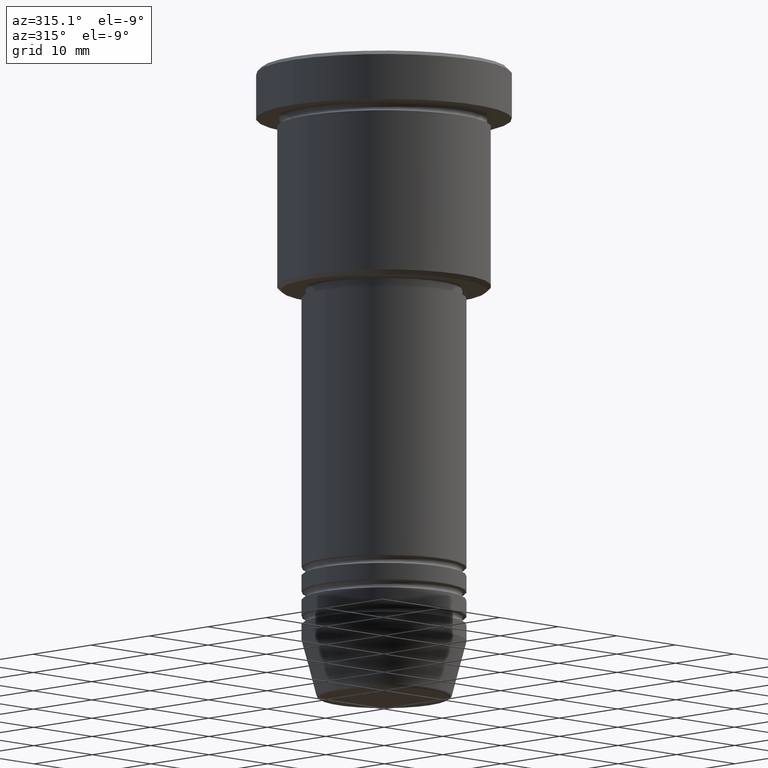
[diagram: clean part render]
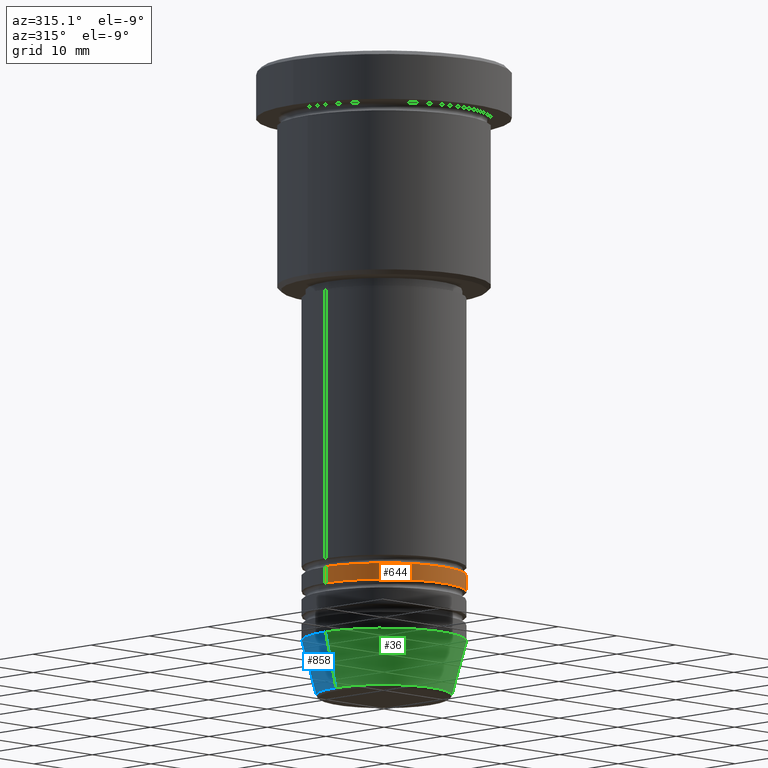
[diagram: same view with three faces highlighted in distinct colors, each labeled with its STEP entity id]
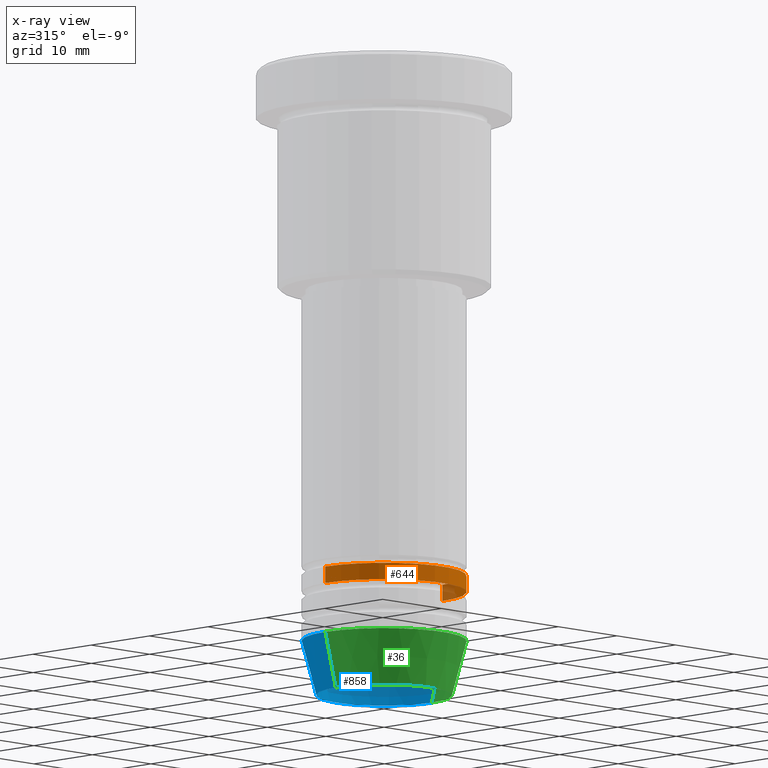
[diagram: x-ray of the same camera — body ghosted, the three highlighted faces saturated]
A machine part, auxiliary view with three faces highlighted in distinct colors.
The next image is the same camera in x-ray (body ghosted, the three faces saturated) — at least one of them is partly hidden behind the body in this view.
Their STEP definitions:

[orange] entity #644 — the highlighted cylindrical surface (partial cylindrical patch) has radius 10 mm, axis along (-0, -0, 1).
#3 = AXIS2_PLACEMENT_3D ( 'NONE', #236, #408, #887 ) ;
#5 = ORIENTED_EDGE ( 'NONE', *, *, #445, .F. ) ;
#52 = CARTESIAN_POINT ( 'NONE',  ( 0.000000000000000000, 0.000000000000000000, 0.000000000000000000 ) ) ;
#153 = ORIENTED_EDGE ( 'NONE', *, *, #864, .T. ) ;
#195 = CARTESIAN_POINT ( 'NONE',  ( 0.000000000000000000, 0.000000000000000000, -61.99999999999998579 ) ) ;
#204 = VECTOR ( 'NONE', #1028, 1000.000000000000000 ) ;
#236 = CARTESIAN_POINT ( 'NONE',  ( 0.000000000000000000, 0.000000000000000000, -63.99999999999998579 ) ) ;
#296 = CARTESIAN_POINT ( 'NONE',  ( -10.00000000000000000, 1.224646799147353256E-15, 0.000000000000000000 ) ) ;
#315 = AXIS2_PLACEMENT_3D ( 'NONE', #195, #761, #1038 ) ;
#367 = CIRCLE ( 'NONE', #315, 10.00000000000000000 ) ;
#369 = LINE ( 'NONE', #296, #204 ) ;
#393 = DIRECTION ( 'NONE',  ( -0.000000000000000000, -0.000000000000000000, 1.000000000000000000 ) ) ;
#408 = DIRECTION ( 'NONE',  ( -0.000000000000000000, -0.000000000000000000, 1.000000000000000000 ) ) ;
#413 = DIRECTION ( 'NONE',  ( -0.000000000000000000, -0.000000000000000000, 1.000000000000000000 ) ) ;
#445 = EDGE_CURVE ( 'NONE', #740, #747, #369, .T. ) ;
#457 = CIRCLE ( 'NONE', #3, 10.00000000000000000 ) ;
#460 = CARTESIAN_POINT ( 'NONE',  ( -10.00000000000000000, 1.224646799147353256E-15, -61.99999999999998579 ) ) ;
#463 = EDGE_LOOP ( 'NONE', ( #5, #831, #153, #464 ) ) ;
#464 = ORIENTED_EDGE ( 'NONE', *, *, #633, .F. ) ;
#494 = CYLINDRICAL_SURFACE ( 'NONE', #1029, 10.00000000000000000 ) ;
#509 = CARTESIAN_POINT ( 'NONE',  ( 10.00000000000000000, 0.000000000000000000, 0.000000000000000000 ) ) ;
#591 = CARTESIAN_POINT ( 'NONE',  ( 10.00000000000000000, 0.000000000000000000, -61.99999999999998579 ) ) ;
#633 = EDGE_CURVE ( 'NONE', #747, #923, #367, .T. ) ;
#644 = ADVANCED_FACE ( 'NONE', ( #863 ), #494, .T. ) ;
#688 = EDGE_CURVE ( 'NONE', #740, #733, #457, .T. ) ;
#733 = VERTEX_POINT ( 'NONE', #879 ) ;
#740 = VERTEX_POINT ( 'NONE', #951 ) ;
#747 = VERTEX_POINT ( 'NONE', #460 ) ;
#761 = DIRECTION ( 'NONE',  ( -0.000000000000000000, -0.000000000000000000, 1.000000000000000000 ) ) ;
#831 = ORIENTED_EDGE ( 'NONE', *, *, #688, .T. ) ;
#863 = FACE_OUTER_BOUND ( 'NONE', #463, .T. ) ;
#864 = EDGE_CURVE ( 'NONE', #733, #923, #981, .T. ) ;
#879 = CARTESIAN_POINT ( 'NONE',  ( 10.00000000000000000, 0.000000000000000000, -63.99999999999998579 ) ) ;
#887 = DIRECTION ( 'NONE',  ( 1.000000000000000000, 0.000000000000000000, 0.000000000000000000 ) ) ;
#923 = VERTEX_POINT ( 'NONE', #591 ) ;
#951 = CARTESIAN_POINT ( 'NONE',  ( -10.00000000000000000, 1.224646799147353256E-15, -63.99999999999998579 ) ) ;
#981 = LINE ( 'NONE', #509, #1124 ) ;
#1028 = DIRECTION ( 'NONE',  ( -0.000000000000000000, -0.000000000000000000, 1.000000000000000000 ) ) ;
#1029 = AXIS2_PLACEMENT_3D ( 'NONE', #52, #393, #1088 ) ;
#1038 = DIRECTION ( 'NONE',  ( 1.000000000000000000, 0.000000000000000000, 0.000000000000000000 ) ) ;
#1088 = DIRECTION ( 'NONE',  ( 1.000000000000000000, 0.000000000000000000, 0.000000000000000000 ) ) ;
#1124 = VECTOR ( 'NONE', #413, 1000.000000000000000 ) ;

[blue] entity #858 — the highlighted conical surface has half-angle 15 deg.
#138 = CARTESIAN_POINT ( 'NONE',  ( 8.223655072137187716, 0.000000000000000000, -76.62940952255127058 ) ) ;
#220 = CIRCLE ( 'NONE', #261, 10.00000000000000000 ) ;
#239 = EDGE_CURVE ( 'NONE', #960, #996, #1131, .T. ) ;
#261 = AXIS2_PLACEMENT_3D ( 'NONE', #854, #765, #956 ) ;
#273 = EDGE_CURVE ( 'NONE', #996, #575, #220, .T. ) ;
#386 = VECTOR ( 'NONE', #763, 1000.000000000000000 ) ;
#405 = AXIS2_PLACEMENT_3D ( 'NONE', #952, #859, #972 ) ;
#424 = AXIS2_PLACEMENT_3D ( 'NONE', #1171, #545, #784 ) ;
#432 = EDGE_LOOP ( 'NONE', ( #1089, #908, #589, #897 ) ) ;
#435 = CARTESIAN_POINT ( 'NONE',  ( -8.223655072137187716, 1.115877042642911856E-15, -76.62940952255127058 ) ) ;
#466 = DIRECTION ( 'NONE',  ( 0.2588190451025213501, 0.000000000000000000, 0.9659258262890680902 ) ) ;
#545 = DIRECTION ( 'NONE',  ( -0.000000000000000000, -0.000000000000000000, 1.000000000000000000 ) ) ;
#548 = CONICAL_SURFACE ( 'NONE', #424, 10.00000000000000000, 0.2617993877991500740 ) ;
#575 = VERTEX_POINT ( 'NONE', #1182 ) ;
#589 = ORIENTED_EDGE ( 'NONE', *, *, #273, .F. ) ;
#637 = VECTOR ( 'NONE', #466, 1000.000000000000000 ) ;
#751 = CIRCLE ( 'NONE', #405, 8.223655072137187716 ) ;
#762 = CARTESIAN_POINT ( 'NONE',  ( 10.00000000000000000, 0.000000000000000000, -70.00000000000000000 ) ) ;
#763 = DIRECTION ( 'NONE',  ( -0.2588190451025213501, 3.169619151431772337E-17, 0.9659258262890680902 ) ) ;
#765 = DIRECTION ( 'NONE',  ( -0.000000000000000000, -0.000000000000000000, 1.000000000000000000 ) ) ;
#784 = DIRECTION ( 'NONE',  ( 1.000000000000000000, 0.000000000000000000, 0.000000000000000000 ) ) ;
#841 = FACE_OUTER_BOUND ( 'NONE', #432, .T. ) ;
#854 = CARTESIAN_POINT ( 'NONE',  ( 0.000000000000000000, 0.000000000000000000, -70.00000000000000000 ) ) ;
#858 = ADVANCED_FACE ( 'NONE', ( #841 ), #548, .T. ) ;
#859 = DIRECTION ( 'NONE',  ( -0.000000000000000000, -0.000000000000000000, 1.000000000000000000 ) ) ;
#897 = ORIENTED_EDGE ( 'NONE', *, *, #239, .F. ) ;
#908 = ORIENTED_EDGE ( 'NONE', *, *, #919, .T. ) ;
#919 = EDGE_CURVE ( 'NONE', #1148, #575, #1045, .T. ) ;
#927 = EDGE_CURVE ( 'NONE', #960, #1148, #751, .T. ) ;
#952 = CARTESIAN_POINT ( 'NONE',  ( 0.000000000000000000, 0.000000000000000000, -76.62940952255127058 ) ) ;
#956 = DIRECTION ( 'NONE',  ( 1.000000000000000000, 0.000000000000000000, 0.000000000000000000 ) ) ;
#960 = VERTEX_POINT ( 'NONE', #138 ) ;
#972 = DIRECTION ( 'NONE',  ( 1.000000000000000000, 0.000000000000000000, 0.000000000000000000 ) ) ;
#996 = VERTEX_POINT ( 'NONE', #1003 ) ;
#1003 = CARTESIAN_POINT ( 'NONE',  ( 10.00000000000000000, 0.000000000000000000, -70.00000000000000000 ) ) ;
#1045 = LINE ( 'NONE', #1140, #386 ) ;
#1089 = ORIENTED_EDGE ( 'NONE', *, *, #927, .T. ) ;
#1131 = LINE ( 'NONE', #762, #637 ) ;
#1140 = CARTESIAN_POINT ( 'NONE',  ( -10.00000000000000000, 1.224646799147353256E-15, -70.00000000000000000 ) ) ;
#1148 = VERTEX_POINT ( 'NONE', #435 ) ;
#1171 = CARTESIAN_POINT ( 'NONE',  ( 0.000000000000000000, 0.000000000000000000, -70.00000000000000000 ) ) ;
#1182 = CARTESIAN_POINT ( 'NONE',  ( -10.00000000000000000, 1.224646799147353256E-15, -70.00000000000000000 ) ) ;

[green] entity #36 — the highlighted conical surface has half-angle 15 deg.
#17 = AXIS2_PLACEMENT_3D ( 'NONE', #155, #535, #704 ) ;
#36 = ADVANCED_FACE ( 'NONE', ( #664 ), #497, .T. ) ;
#48 = AXIS2_PLACEMENT_3D ( 'NONE', #1033, #471, #966 ) ;
#138 = CARTESIAN_POINT ( 'NONE',  ( 8.223655072137187716, 0.000000000000000000, -76.62940952255127058 ) ) ;
#155 = CARTESIAN_POINT ( 'NONE',  ( 0.000000000000000000, 0.000000000000000000, -70.00000000000000000 ) ) ;
#178 = ORIENTED_EDGE ( 'NONE', *, *, #919, .F. ) ;
#237 = DIRECTION ( 'NONE',  ( 1.000000000000000000, 0.000000000000000000, 0.000000000000000000 ) ) ;
#239 = EDGE_CURVE ( 'NONE', #960, #996, #1131, .T. ) ;
#313 = EDGE_CURVE ( 'NONE', #1148, #960, #383, .T. ) ;
#325 = EDGE_CURVE ( 'NONE', #575, #996, #348, .T. ) ;
#348 = CIRCLE ( 'NONE', #17, 10.00000000000000000 ) ;
#383 = CIRCLE ( 'NONE', #522, 8.223655072137187716 ) ;
#386 = VECTOR ( 'NONE', #763, 1000.000000000000000 ) ;
#409 = DIRECTION ( 'NONE',  ( -0.000000000000000000, -0.000000000000000000, 1.000000000000000000 ) ) ;
#435 = CARTESIAN_POINT ( 'NONE',  ( -8.223655072137187716, 1.115877042642911856E-15, -76.62940952255127058 ) ) ;
#466 = DIRECTION ( 'NONE',  ( 0.2588190451025213501, 0.000000000000000000, 0.9659258262890680902 ) ) ;
#471 = DIRECTION ( 'NONE',  ( -0.000000000000000000, -0.000000000000000000, 1.000000000000000000 ) ) ;
#475 = ORIENTED_EDGE ( 'NONE', *, *, #325, .F. ) ;
#497 = CONICAL_SURFACE ( 'NONE', #48, 10.00000000000000000, 0.2617993877991500740 ) ;
#506 = ORIENTED_EDGE ( 'NONE', *, *, #239, .T. ) ;
#522 = AXIS2_PLACEMENT_3D ( 'NONE', #1126, #409, #237 ) ;
#535 = DIRECTION ( 'NONE',  ( -0.000000000000000000, -0.000000000000000000, 1.000000000000000000 ) ) ;
#575 = VERTEX_POINT ( 'NONE', #1182 ) ;
#611 = EDGE_LOOP ( 'NONE', ( #178, #697, #506, #475 ) ) ;
#637 = VECTOR ( 'NONE', #466, 1000.000000000000000 ) ;
#664 = FACE_OUTER_BOUND ( 'NONE', #611, .T. ) ;
#697 = ORIENTED_EDGE ( 'NONE', *, *, #313, .T. ) ;
#704 = DIRECTION ( 'NONE',  ( 1.000000000000000000, 0.000000000000000000, 0.000000000000000000 ) ) ;
#762 = CARTESIAN_POINT ( 'NONE',  ( 10.00000000000000000, 0.000000000000000000, -70.00000000000000000 ) ) ;
#763 = DIRECTION ( 'NONE',  ( -0.2588190451025213501, 3.169619151431772337E-17, 0.9659258262890680902 ) ) ;
#919 = EDGE_CURVE ( 'NONE', #1148, #575, #1045, .T. ) ;
#960 = VERTEX_POINT ( 'NONE', #138 ) ;
#966 = DIRECTION ( 'NONE',  ( 1.000000000000000000, 0.000000000000000000, 0.000000000000000000 ) ) ;
#996 = VERTEX_POINT ( 'NONE', #1003 ) ;
#1003 = CARTESIAN_POINT ( 'NONE',  ( 10.00000000000000000, 0.000000000000000000, -70.00000000000000000 ) ) ;
#1033 = CARTESIAN_POINT ( 'NONE',  ( 0.000000000000000000, 0.000000000000000000, -70.00000000000000000 ) ) ;
#1045 = LINE ( 'NONE', #1140, #386 ) ;
#1126 = CARTESIAN_POINT ( 'NONE',  ( 0.000000000000000000, 0.000000000000000000, -76.62940952255127058 ) ) ;
#1131 = LINE ( 'NONE', #762, #637 ) ;
#1140 = CARTESIAN_POINT ( 'NONE',  ( -10.00000000000000000, 1.224646799147353256E-15, -70.00000000000000000 ) ) ;
#1148 = VERTEX_POINT ( 'NONE', #435 ) ;
#1182 = CARTESIAN_POINT ( 'NONE',  ( -10.00000000000000000, 1.224646799147353256E-15, -70.00000000000000000 ) ) ;